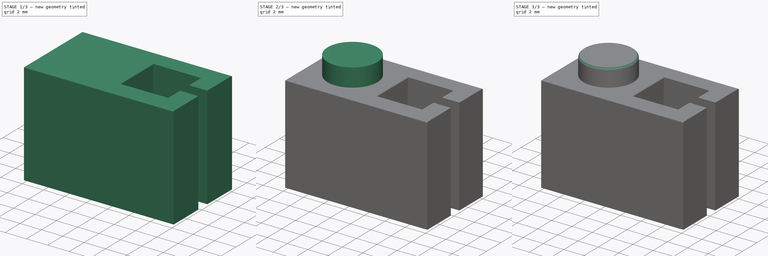
[diagram: build sequence overview — one tinted view per stage of 3, left to right]
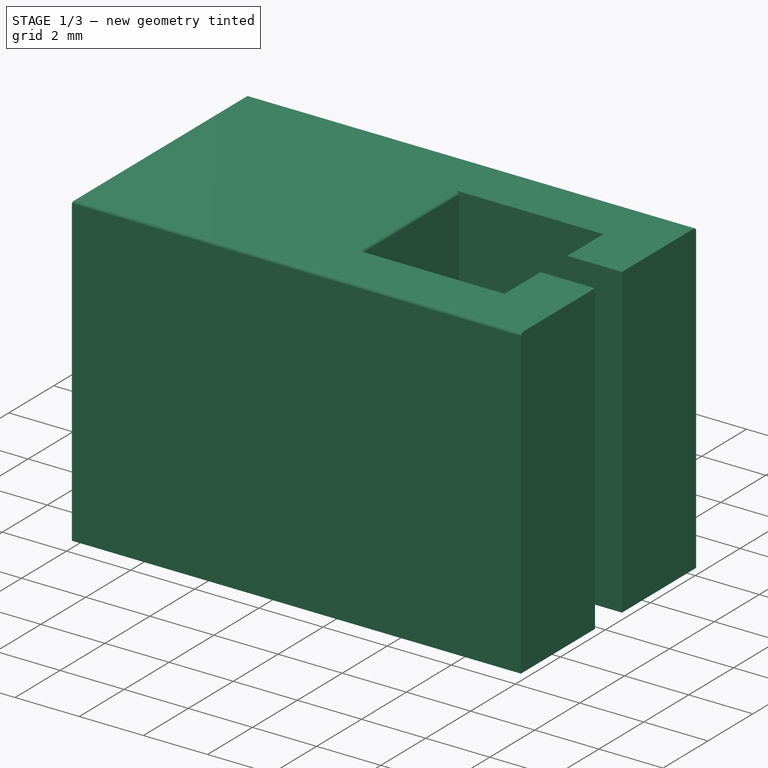
[diagram: stage 1 of 3 — iso view after this stage's code; geometry added in this stage tinted green]
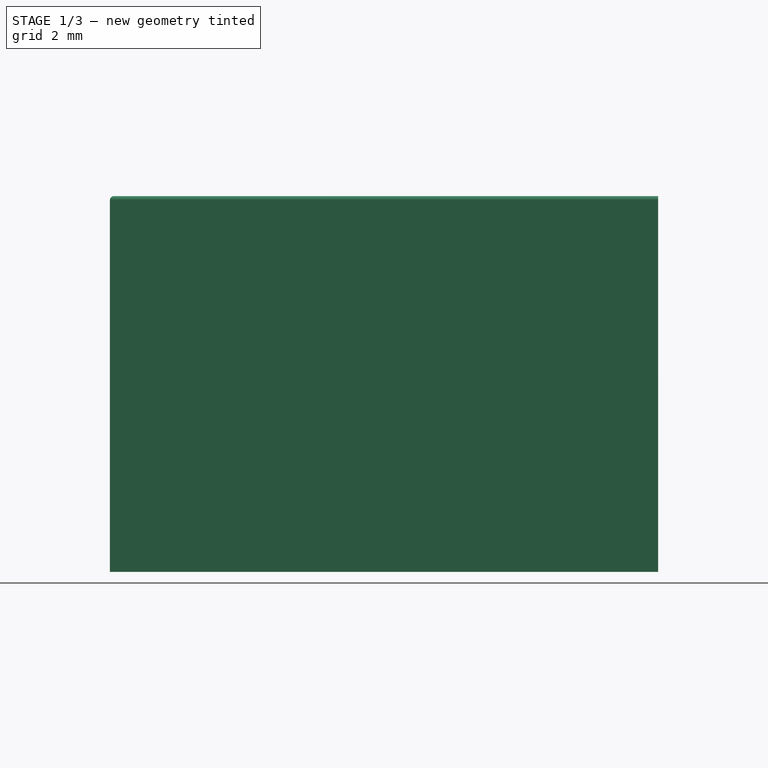
[diagram: stage 1 of 3 — front view after this stage's code; geometry added in this stage tinted green]
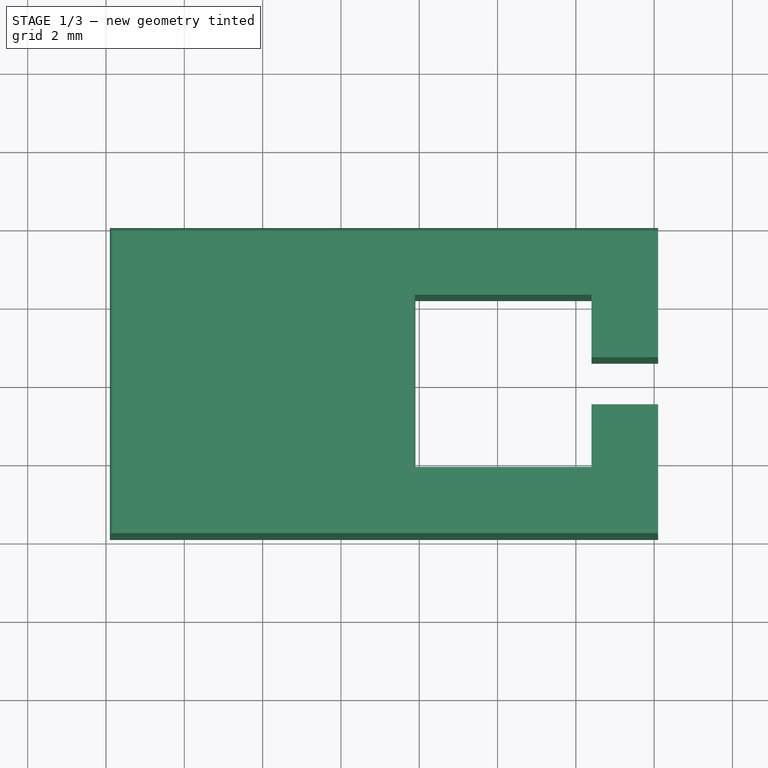
[diagram: stage 1 of 3 — top view after this stage's code; geometry added in this stage tinted green]
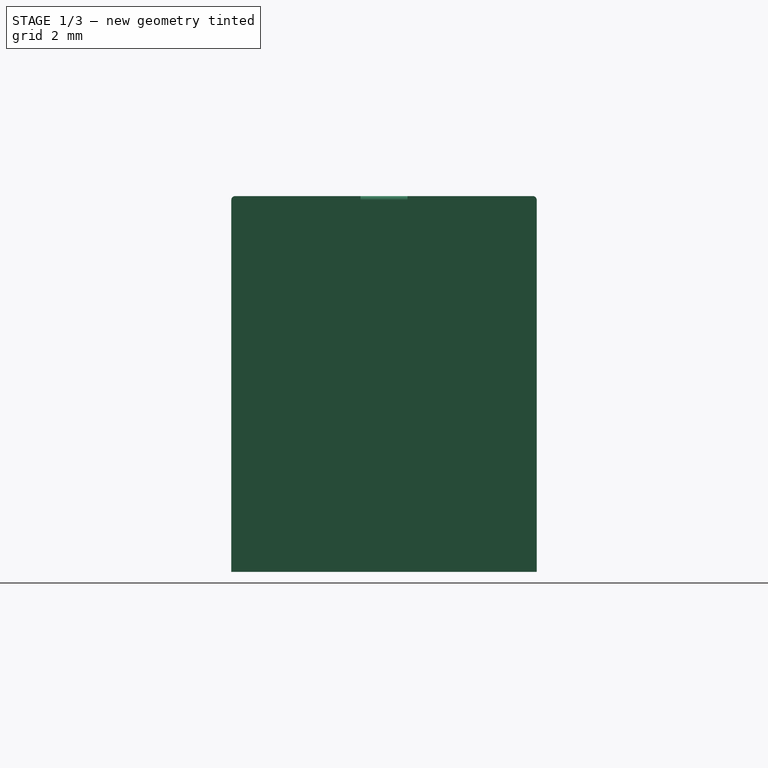
[diagram: stage 1 of 3 — right view after this stage's code; geometry added in this stage tinted green]
FCSTD DOCUMENT  (FreeCAD 1.0R39285 (Git))
Label: KabelhalterUnten_1x1x3_v
License: Creative Commons Attribution-NonCommercial 4.0
LicenseURL: https://creativecommons.org/licenses/by-nc/4.0/
objects: PartDesign::Plane×11, Sketcher::SketchObject×4, PartDesign::Pad×2, PartDesign::Fillet×2, PartDesign::Pocket×2, PartDesign::Body×1
note: 38 computed .brp shape members not serialized (recipe doc carries the construction recipe); baked Part::Feature solids carry a one-line shape summary decoded from their .brp

FEATURE [PartDesign::Plane] top_datum_plane
  AttachmentOffset = pos=(0,0,9.6) rot=(0,0,1;0rad)
  AttachmentSupport = -> [XY_Plane]
  Length = 60
  MapMode = 5
  Placement = pos=(0,0,9.6) rot=(0,0,1;0rad)
  ResizeMode = 0
  Width = 60
FEATURE [PartDesign::Plane] front_datum_plane
  AttachmentOffset = pos=(0,0,3.9) rot=(0,0,1;0rad)
  AttachmentSupport = -> [XZ_Plane]
  Length = 60
  MapMode = 5
  Placement = pos=(0,-3.9,9e-16) rot=(1,0,0;1.5708rad)
  ResizeMode = 0
  Width = 60
FEATURE [PartDesign::Plane] back_datum_plane
  AttachmentOffset = pos=(0,0,-3.9) rot=(0,0,1;0rad)
  AttachmentSupport = -> [XZ_Plane]
  Length = 60
  MapMode = 5
  Placement = pos=(0,3.9,-9e-16) rot=(1,0,0;1.5708rad)
  ResizeMode = 0
  Width = 60
FEATURE [PartDesign::Plane] left_datum_plane
  AttachmentOffset = pos=(0,0,-3.9) rot=(0,0,1;0rad)
  AttachmentSupport = -> [YZ_Plane]
  Length = 60
  MapMode = 5
  Placement = pos=(-3.9,0,0) rot=(0.57735,0.57735,0.57735;2.0944rad)
  ResizeMode = 0
  Width = 60
FEATURE [PartDesign::Plane] right_datum_plane
  AttachmentOffset = pos=(0,0,3.9) rot=(0,0,1;0rad)
  AttachmentSupport = -> [YZ_Plane]
  Length = 60
  MapMode = 5
  Placement = pos=(3.9,0,0) rot=(0.57735,0.57735,0.57735;2.0944rad)
  ResizeMode = 0
  Width = 60
FEATURE [PartDesign::Plane] top_inside_datum_plane
  AttachmentOffset = pos=(0,0,8.5) rot=(0,0,1;0rad)
  AttachmentSupport = -> [XY_Plane]
  Length = 60
  MapMode = 5
  Placement = pos=(0,0,8.5) rot=(0,0,1;0rad)
  ResizeMode = 0
  Width = 60
FEATURE [PartDesign::Plane] front_inside_datum_plane
  AttachmentOffset = pos=(0,0,2.7) rot=(0,0,1;0rad)
  AttachmentSupport = -> [XZ_Plane]
  Length = 60
  MapMode = 5
  Placement = pos=(0,-2.7,6e-16) rot=(1,0,0;1.5708rad)
  ResizeMode = 0
  Width = 60
FEATURE [PartDesign::Plane] back_inside_datum_plane
  AttachmentOffset = pos=(0,0,-2.7) rot=(0,0,1;0rad)
  AttachmentSupport = -> [XZ_Plane]
  Length = 60
  MapMode = 5
  Placement = pos=(0,2.7,-6e-16) rot=(1,0,0;1.5708rad)
  ResizeMode = 0
  Width = 60
FEATURE [PartDesign::Plane] left_inside_datum_plane
  AttachmentOffset = pos=(0,0,-2.7) rot=(0,0,1;0rad)
  AttachmentSupport = -> [YZ_Plane]
  Length = 60
  MapMode = 5
  Placement = pos=(-2.7,0,0) rot=(0.57735,0.57735,0.57735;2.0944rad)
  ResizeMode = 0
  Width = 60
FEATURE [PartDesign::Plane] right_inside_datum_plane
  AttachmentOffset = pos=(0,0,2.7) rot=(0,0,1;0rad)
  AttachmentSupport = -> [YZ_Plane]
  Length = 60
  MapMode = 5
  Placement = pos=(2.7,0,0) rot=(0.57735,0.57735,0.57735;2.0944rad)
  ResizeMode = 0
  Width = 60
FEATURE [PartDesign::Plane] depth_mirror_datum_plane
  AttachmentSupport = -> [XZ_Plane]
  Length = 60
  MapMode = 5
  Placement = pos=(0,0,0) rot=(1,0,0;1.5708rad)
  ResizeMode = 0
  Width = 60
FEATURE [Sketcher::SketchObject] body_pad_sketch
  ArcFitTolerance = 1e-06
  AttachmentSupport = -> [XY_Plane]
  FullyConstrained = true
  MakeInternals = false
  MapMode = 2
  sketch-geometry (12):
    g0: LineSegment StartX=-3.9 StartY=-3.9 StartZ=0 EndX=10.1 EndY=-3.9 EndZ=0
    g1: LineSegment StartX=10.1 StartY=-3.9 StartZ=0 EndX=10.1 EndY=-0.6 EndZ=0
    g2: LineSegment StartX=10.1 StartY=3.9 StartZ=0 EndX=-3.9 EndY=3.9 EndZ=0
    g3: LineSegment StartX=-3.9 StartY=3.9 StartZ=0 EndX=-3.9 EndY=-3.9 EndZ=0
    g4: LineSegment StartX=10.1 StartY=0.6 StartZ=0 EndX=8.4 EndY=0.6 EndZ=0
    g5: LineSegment StartX=8.4 StartY=0.6 StartZ=0 EndX=8.4 EndY=2.2 EndZ=0
    g6: LineSegment StartX=8.4 StartY=2.2 StartZ=0 EndX=3.9 EndY=2.2 EndZ=0
    g7: LineSegment StartX=3.9 StartY=2.2 StartZ=0 EndX=3.9 EndY=-2.2 EndZ=0
    g8: LineSegment StartX=3.9 StartY=-2.2 StartZ=0 EndX=8.4 EndY=-2.2 EndZ=0
    g9: LineSegment StartX=8.4 StartY=-2.2 StartZ=0 EndX=8.4 EndY=-0.6 EndZ=0
    g10: LineSegment StartX=8.4 StartY=-0.6 StartZ=0 EndX=10.1 EndY=-0.6 EndZ=0
    g11: LineSegment StartX=10.1 StartY=0.6 StartZ=0 EndX=10.1 EndY=3.9 EndZ=0
  constraints (36):
    c: Coincident(g0,g1)
    c: Coincident(g11,g2)
    c: Coincident(g2,g3)
    c: Coincident(g3,g0)
    c: Horizontal(g0)
    c: Horizontal(g2)
    c: Vertical(g1)
    c: Vertical(g3)
    c: DistanceX(g0,g-1) = 3.9
    c: DistanceY(g0,g-1) = 3.9
    c: DistanceX(g0,g0) = 14
    c: DistanceY(g1,g11) = 7.8
    c: PointOnObject(g4,g11)
    c: Horizontal(g4)
    c: Coincident(g4,g5)
    c: Vertical(g5)
    c: Coincident(g5,g6)
    c: Horizontal(g6)
    c: Coincident(g6,g7)
    c: Vertical(g7)
    c: Coincident(g7,g8)
    c: Horizontal(g8)
    c: Coincident(g8,g9)
    c: Vertical(g9)
    c: Coincident(g9,g10)
    c: Horizontal(g10)
    c: Coincident(g1,g10)
    c: PointOnObject(g11,g4)
    c: Equal(g4,g10)
    c: DistanceX(g0,g7) = 7.8
    c: DistanceY(g0,g8) = 1.7
    c: DistanceY(g5,g2) = 1.7
    c: DistanceX(g8,g0) = 1.7
    c: DistanceY(g1,g4) = 1.2
    c: Symmetric(g4,g9,g-1)
    c: Vertical(g11)
FEATURE [PartDesign::Pad] body_pad
  Direction = (0,0,1)
  Length = 10
  Length2 = 10
  Profile = -> body_pad_sketch
  Refine = true
  Suppressed = false
  Type = 3
  UpToFace = -> top_datum_plane
FEATURE [PartDesign::Fillet] body_edge_fillets
  Base = -> body_pad [Edge17,Edge27,Edge26,Edge21]
  BaseFeature = -> body_pad
  Radius = 0.1
  Refine = true
  SupportTransform = false
  Suppressed = false
  UseAllEdges = false
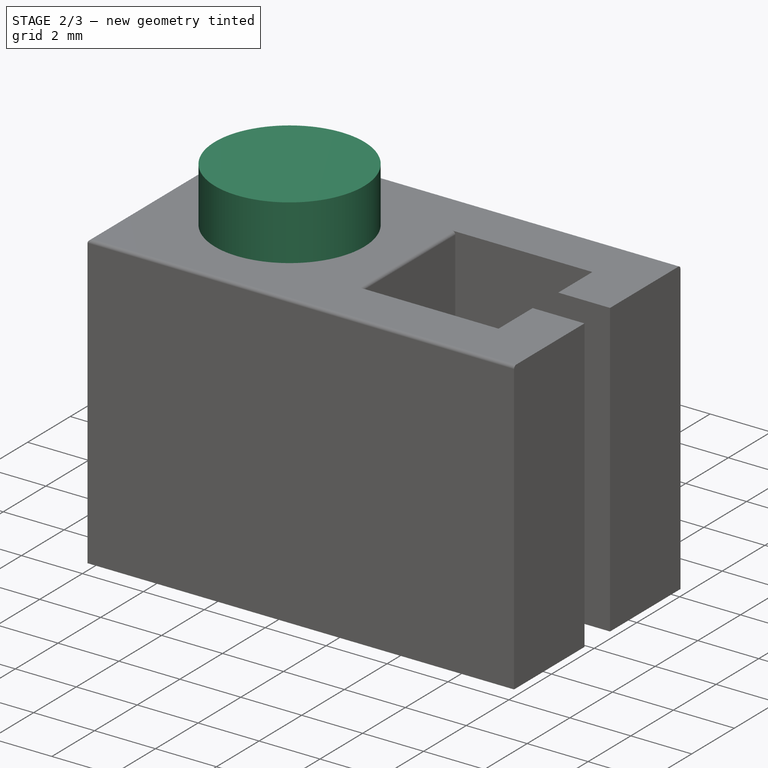
[diagram: stage 2 of 3 — iso view after this stage's code; geometry added in this stage tinted green]
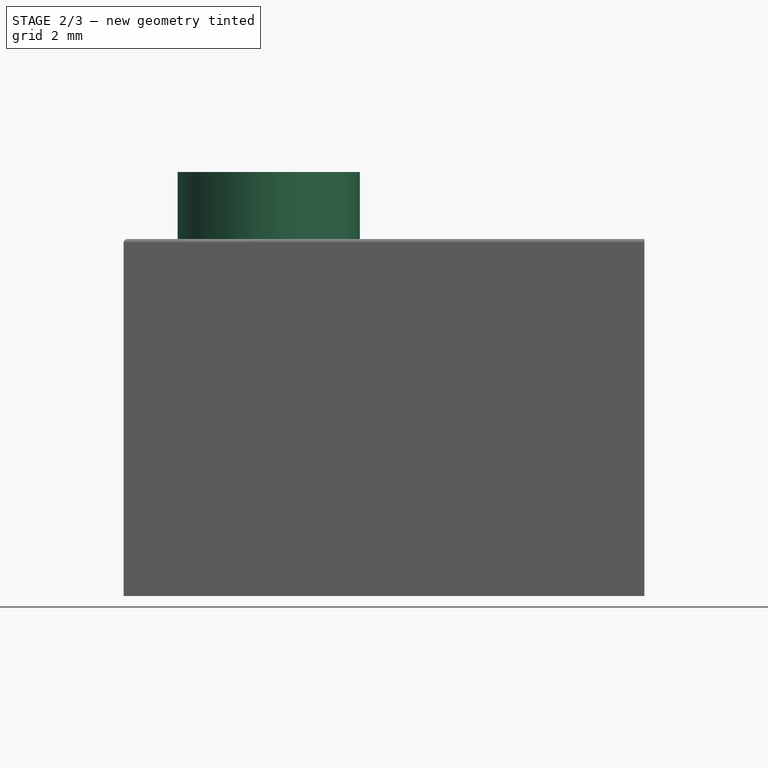
[diagram: stage 2 of 3 — front view after this stage's code; geometry added in this stage tinted green]
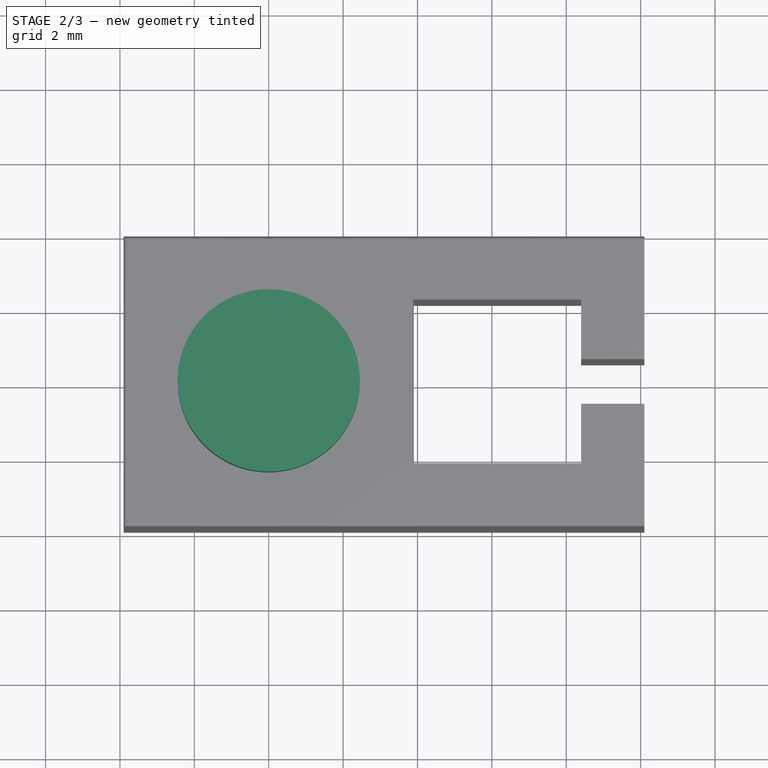
[diagram: stage 2 of 3 — top view after this stage's code; geometry added in this stage tinted green]
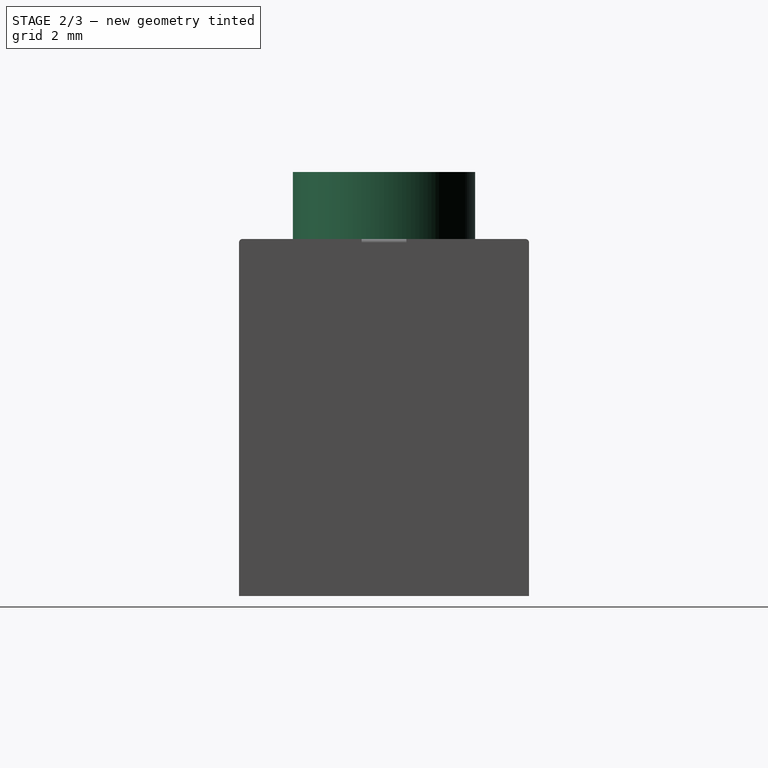
[diagram: stage 2 of 3 — right view after this stage's code; geometry added in this stage tinted green]
FEATURE [Sketcher::SketchObject] body_pocket_sketch
  ArcFitTolerance = 1e-06
  AttachmentSupport = -> [body_pad_sketch]
  FullyConstrained = true
  MakeInternals = false
  MapMode = 2
  sketch-geometry (4):
    g0: LineSegment StartX=-2.4 StartY=-2.4 StartZ=0 EndX=2.4 EndY=-2.4 EndZ=0
    g1: LineSegment StartX=2.4 StartY=-2.4 StartZ=0 EndX=2.4 EndY=2.4 EndZ=0
    g2: LineSegment StartX=2.4 StartY=2.4 StartZ=0 EndX=-2.4 EndY=2.4 EndZ=0
    g3: LineSegment StartX=-2.4 StartY=2.4 StartZ=0 EndX=-2.4 EndY=-2.4 EndZ=0
  constraints (12):
    c: Horizontal(g0)
    c: Vertical(g1)
    c: Coincident(g0,g1)
    c: Horizontal(g2)
    c: Coincident(g1,g2)
    c: Vertical(g3)
    c: Coincident(g2,g3)
    c: Coincident(g3,g0)
    c: DistanceX(g0,g0) = 4.8
    c: DistanceY(g1,g1) = 4.8
    c: DistanceX(g0,g-1) = 2.4
    c: DistanceY(g0,g-1) = 2.4
FEATURE [PartDesign::Pocket] body_pocket
  BaseFeature = -> body_edge_fillets
  Direction = (0,0,-1)
  Length = 5
  Length2 = 5
  Profile = -> body_pocket_sketch
  Refine = true
  Reversed = true
  Suppressed = false
  Type = 3
  UpToFace = -> top_inside_datum_plane
FEATURE [Sketcher::SketchObject] top_studs_outside_pad_sketch
  ArcFitTolerance = 1e-06
  AttachmentSupport = -> [top_datum_plane]
  FullyConstrained = true
  MakeInternals = false
  MapMode = 5
  Placement = pos=(0,0,9.6) rot=(0,0,1;0rad)
  sketch-geometry (1):
    g0: Circle CenterX=0 CenterY=0 CenterZ=0 NormalX=0 NormalY=0 NormalZ=1 AngleXU=0 Radius=2.45
  constraints (3):
    c: Radius(g0) = 2.45
    c: DistanceX(g-1,g0) = 0
    c: DistanceY(g-1,g0) = 0
FEATURE [PartDesign::Pad] top_studs_outside_pad
  BaseFeature = -> body_pocket
  Direction = (0,0,1)
  Length = 1.8
  Length2 = 10
  Profile = -> top_studs_outside_pad_sketch
  Refine = true
  Suppressed = false
  Type = 0
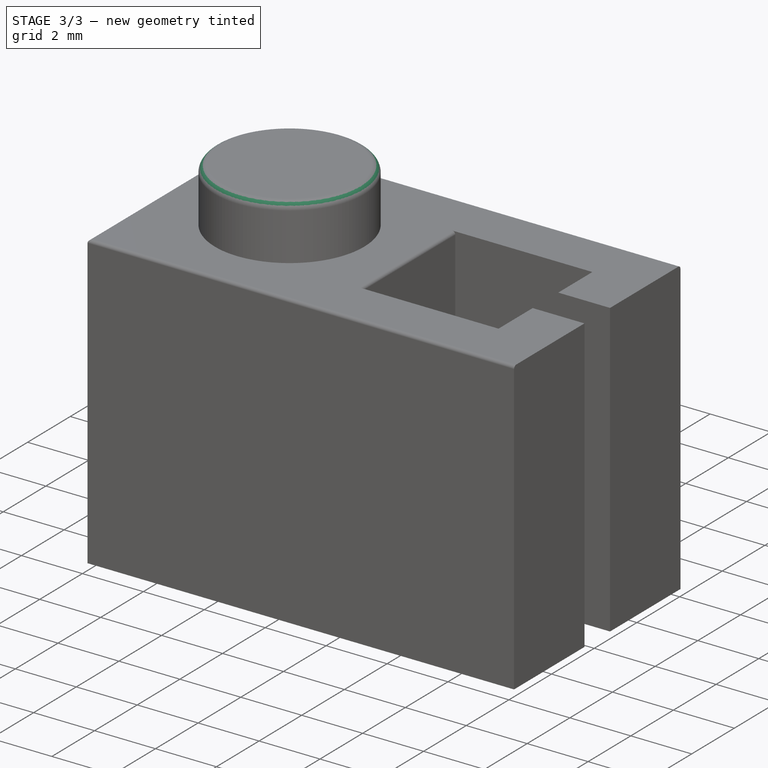
[diagram: stage 3 of 3 — iso view after this stage's code; geometry added in this stage tinted green]
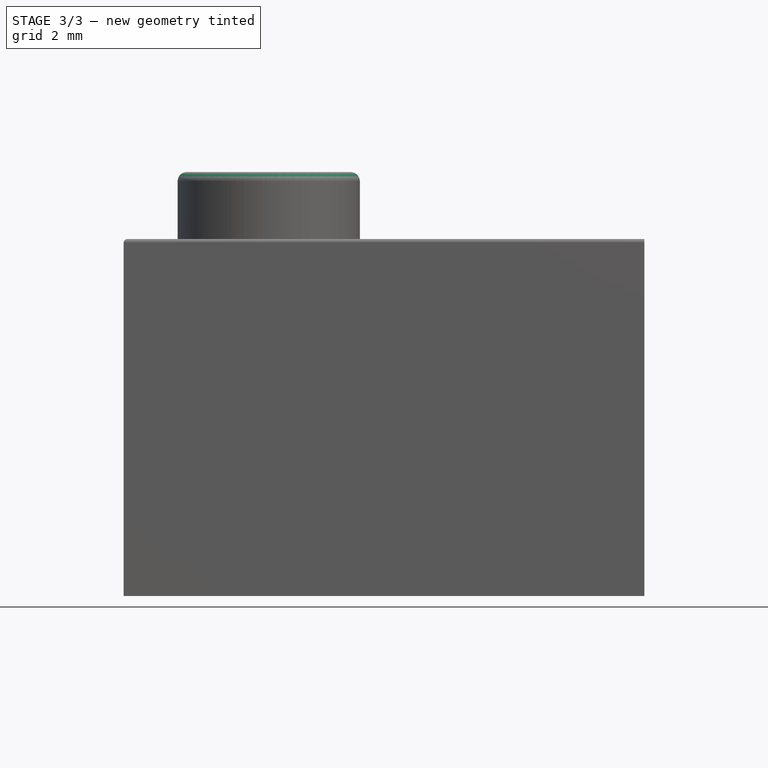
[diagram: stage 3 of 3 — front view after this stage's code; geometry added in this stage tinted green]
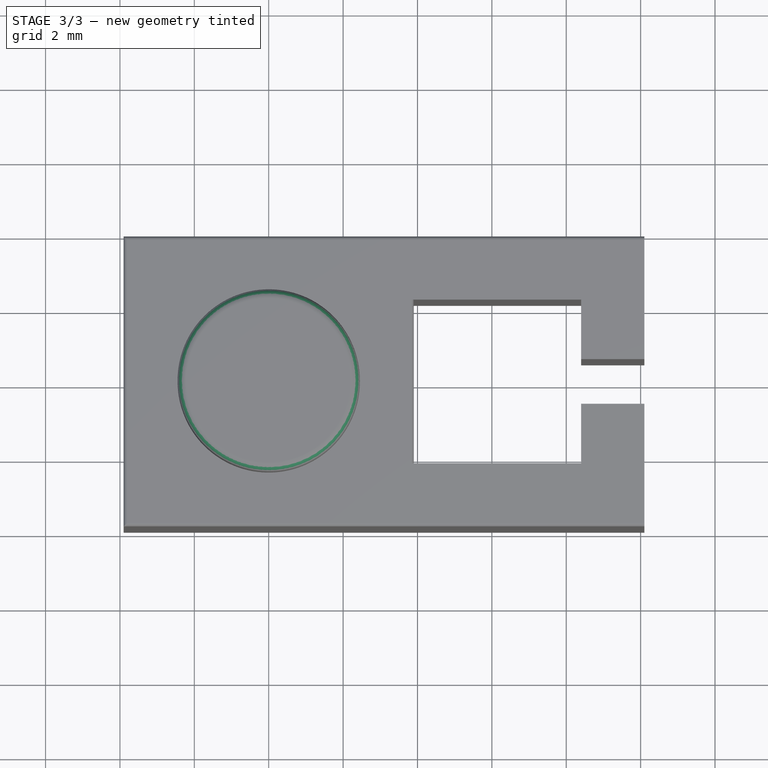
[diagram: stage 3 of 3 — top view after this stage's code; geometry added in this stage tinted green]
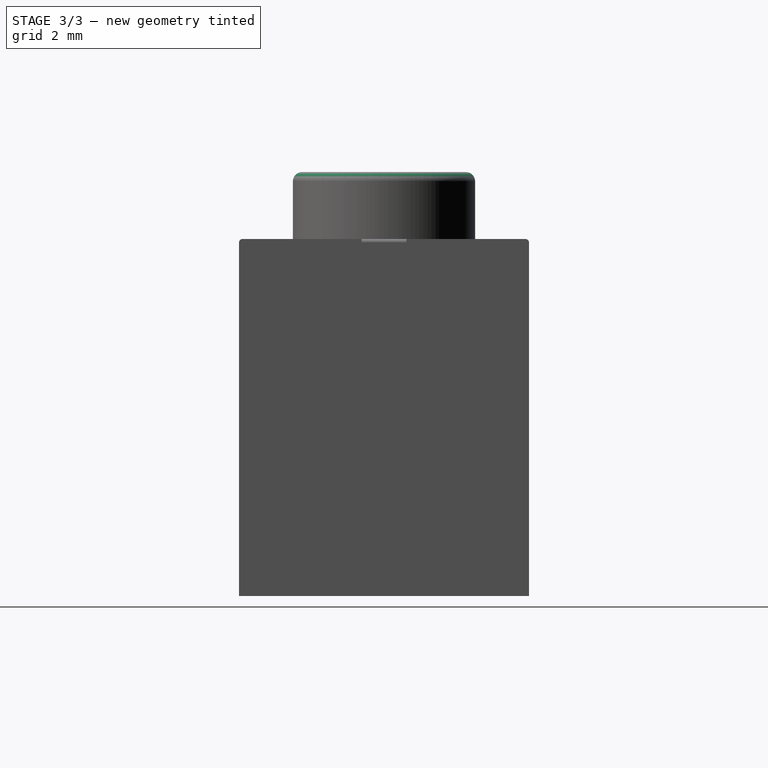
[diagram: stage 3 of 3 — right view after this stage's code; geometry added in this stage tinted green]
FEATURE [PartDesign::Fillet] top_stud_outer_fillets
  Base = -> top_studs_outside_pad [Edge63]
  BaseFeature = -> top_studs_outside_pad
  Radius = 0.25
  Refine = true
  SupportTransform = false
  Suppressed = false
  UseAllEdges = false
FEATURE [Sketcher::SketchObject] top_studs_inside_pocket_sketch
  ArcFitTolerance = 1e-06
  AttachmentSupport = -> [top_inside_datum_plane]
  FullyConstrained = true
  MakeInternals = false
  MapMode = 5
  Placement = pos=(0,0,8.5) rot=(0,0,1;0rad)
  sketch-geometry (1):
    g0: Circle CenterX=0 CenterY=0 CenterZ=0 NormalX=0 NormalY=0 NormalZ=1 AngleXU=0 Radius=1.2
  constraints (3):
    c: Radius(g0) = 1.2
    c: DistanceX(g-1,g0) = 0
    c: DistanceY(g-1,g0) = 0
FEATURE [PartDesign::Pocket] top_studs_inside_pocket
  BaseFeature = -> top_stud_outer_fillets
  Direction = (0,0,-1)
  Length = 1.7
  Length2 = 5
  Profile = -> top_studs_inside_pocket_sketch
  Refine = true
  Reversed = true
  Suppressed = false
  Type = 0
FEATURE [PartDesign::Body] brick  label="Kabelhalter_v"
  AllowCompound = false
  Group = -> [top_datum_plane,front_datum_plane,back_datum_plane,left_datum_plane,right_datum_plane,top_inside_datum_plane,front_inside_datum_plane,back_inside_datum_plane,left_inside_datum_plane,right_inside_datum_plane,depth_mirror_datum_plane,body_pad_sketch,body_pad,body_edge_fillets,body_pocket_sketch,body_pocket,top_studs_outside_pad_sketch,top_studs_outside_pad,top_stud_outer_fillets,+2 more]
  Origin = -> Origin
  Tip = -> top_studs_inside_pocket
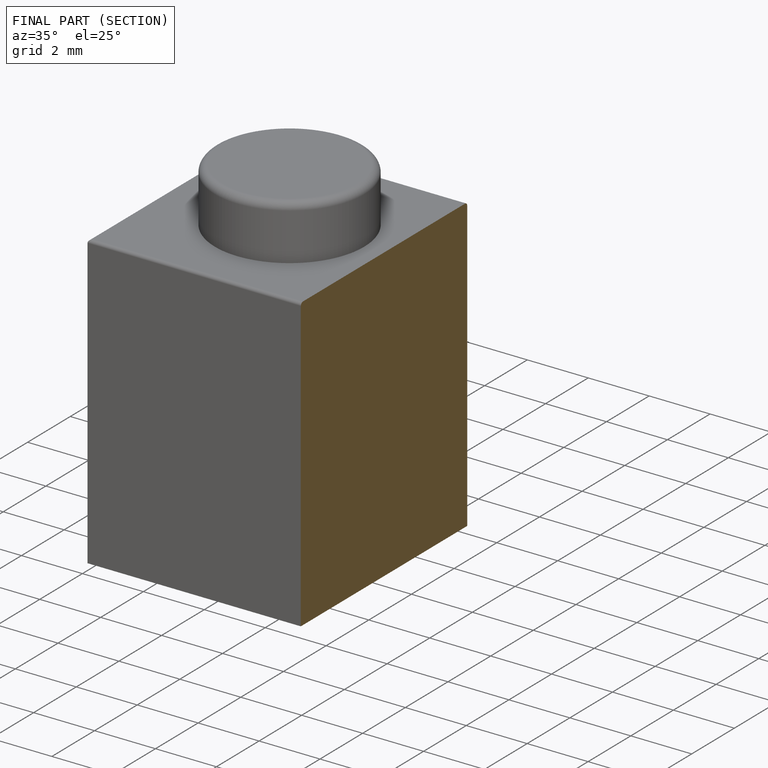
[diagram: finished part — half-section view (interior)]
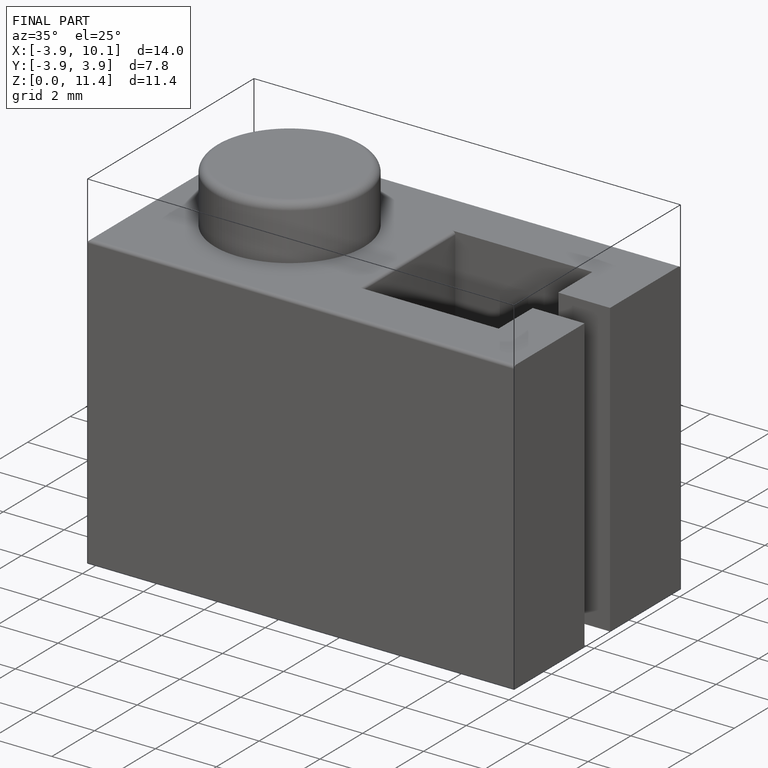
[diagram: finished part — iso view with bounding-box wireframe]
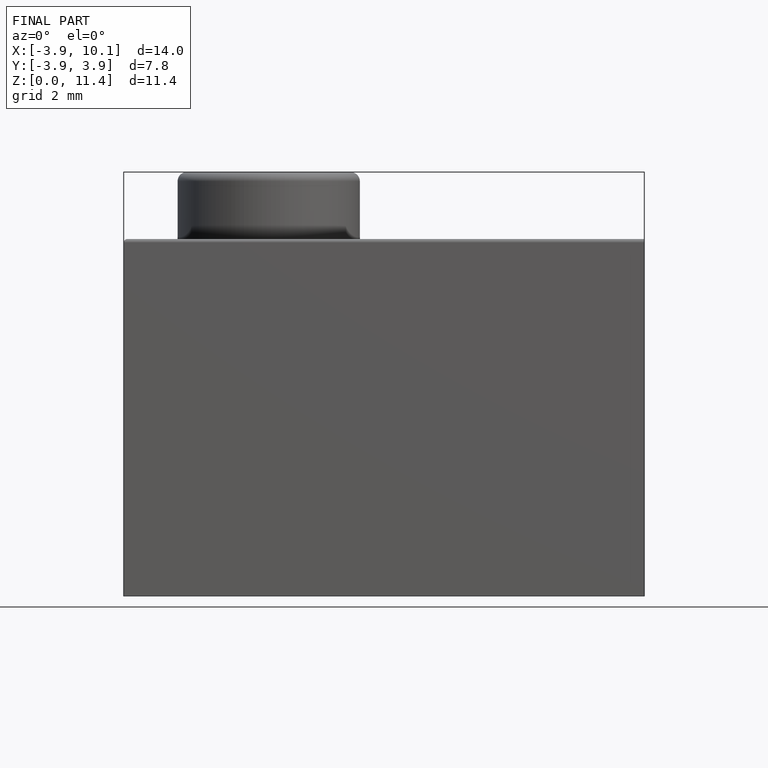
[diagram: finished part — front view with bounding-box wireframe]
